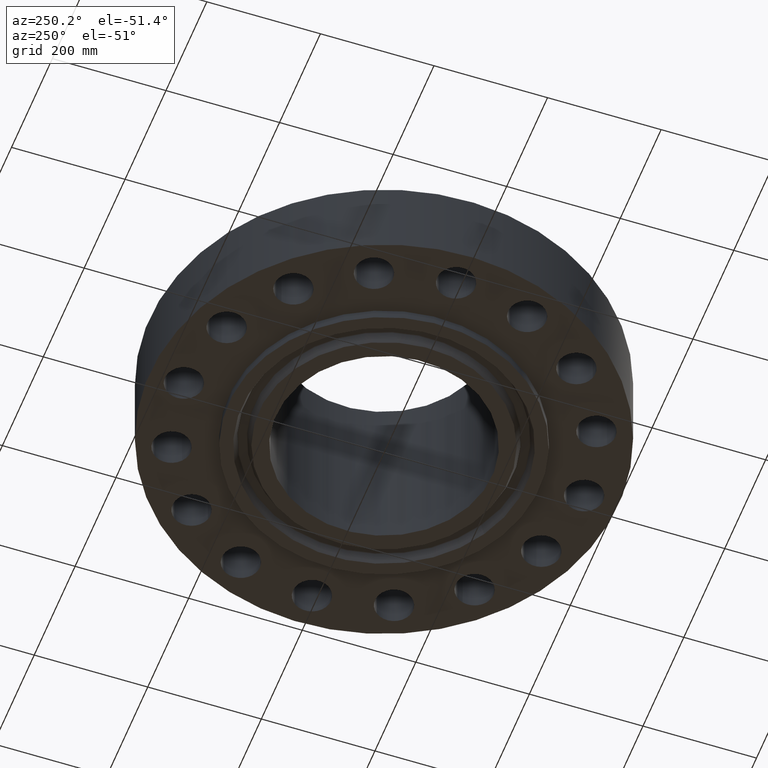
[diagram: clean part render]
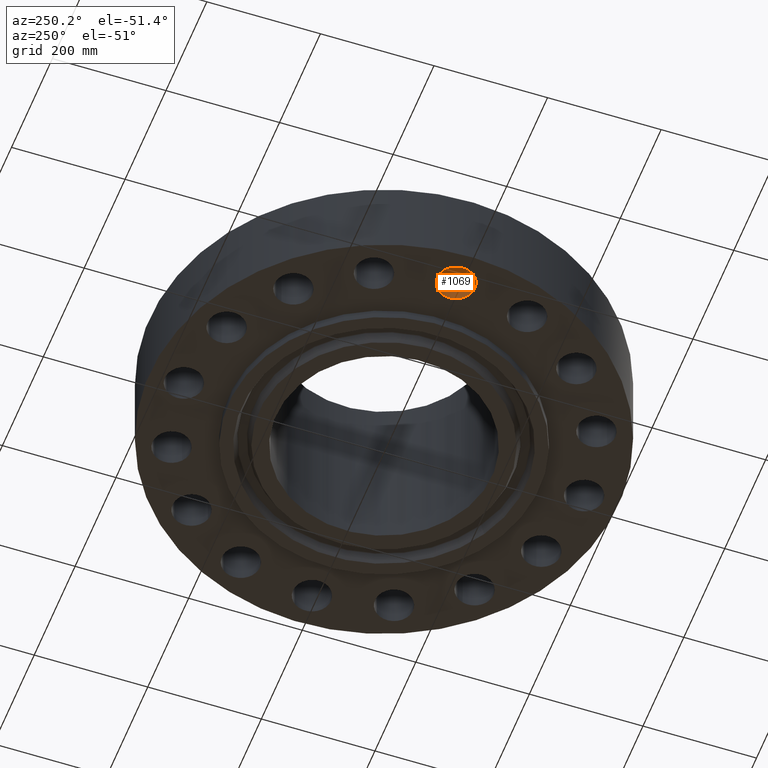
[diagram: same view with one face highlighted and labeled with its STEP entity id]
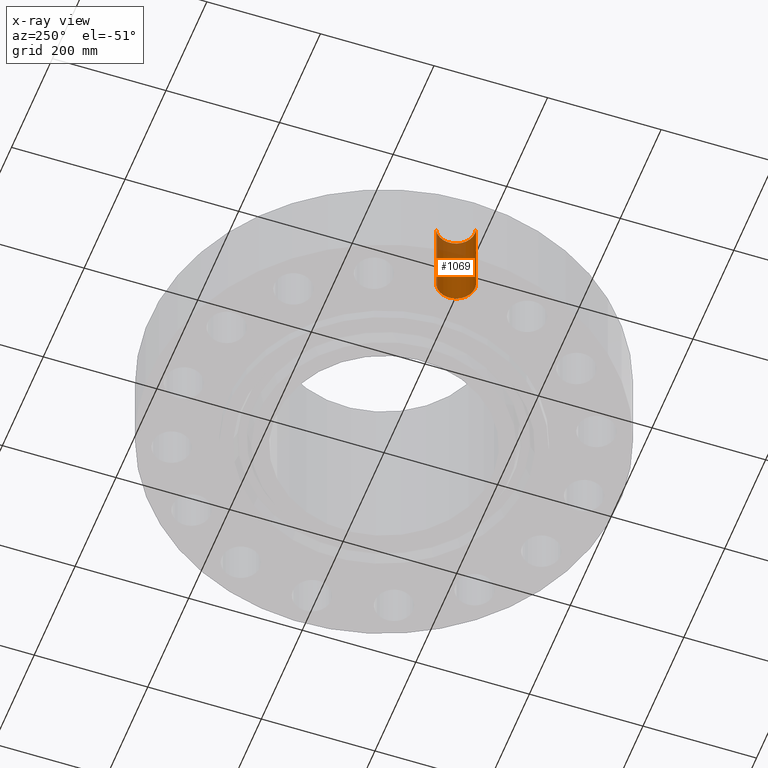
[diagram: x-ray of the same camera — body ghosted, the highlighted face saturated]
A machine part, auxiliary view. The second image highlights one B-rep face of the part: STEP entity #1069.
The next image is the same camera in x-ray: the body ghosted, the highlighted face saturated — about 17% of this face is hidden behind the body in this view.
In plain terms, the highlighted cylindrical surface (edge-blend (fillet) strip) has radius 33.401 mm, axis along (0, 0, -1).
Its self-contained STEP definition (entity closure, byte-faithful):
#707=AXIS2_PLACEMENT_3D('Circle Axis2P3D',#705,#706,$) ;
#1030=AXIS2_PLACEMENT_3D('Cylinder Axis2P3D',#1027,#1028,#1029) ;
#1060=AXIS2_PLACEMENT_3D('Circle Axis2P3D',#1058,#1059,$) ;
#700=CARTESIAN_POINT('Vertex',(-14.5054445833,-1.15402106889,0.)) ;
#702=CARTESIAN_POINT('Vertex',(-13.2445554168,1.15402106889,0.)) ;
#705=CARTESIAN_POINT('Axis2P3D Location',(-13.8750000001,-2.23792987641E-015,0.)) ;
#1027=CARTESIAN_POINT('Axis2P3D Location',(-13.8750000001,-2.54879615074E-015,5.74606299215)) ;
#1032=CARTESIAN_POINT('Line Origine',(-14.5054445833,-1.15402106889,2.87500000001)) ;
#1036=CARTESIAN_POINT('Vertex',(-14.5054445833,-1.15402106889,5.75000000002)) ;
#1039=CARTESIAN_POINT('Line Origine',(-13.2445554168,1.15402106889,2.87500000001)) ;
#1043=CARTESIAN_POINT('Vertex',(-13.2445554168,1.15402106889,5.75000000002)) ;
#1058=CARTESIAN_POINT('Axis2P3D Location',(-13.8750000001,-2.54879615074E-015,5.75000000002)) ;
#706=DIRECTION('Axis2P3D Direction',(0.,0.,-0.0393700787402)) ;
#1028=DIRECTION('Axis2P3D Direction',(0.,0.,-0.0393700787402)) ;
#1029=DIRECTION('Axis2P3D XDirection',(0.0188750212049,0.0345504945626,0.)) ;
#1033=DIRECTION('Vector Direction',(0.,0.,-0.0393700787402)) ;
#1040=DIRECTION('Vector Direction',(0.,0.,-0.0393700787402)) ;
#1059=DIRECTION('Axis2P3D Direction',(0.,0.,-0.0393700787402)) ;
#1034=VECTOR('Line Direction',#1033,0.0393700787402) ;
#1041=VECTOR('Line Direction',#1040,0.0393700787402) ;
#1064=ORIENTED_EDGE('',*,*,#1045,.F.) ;
#1065=ORIENTED_EDGE('',*,*,#709,.T.) ;
#1066=ORIENTED_EDGE('',*,*,#1038,.T.) ;
#1067=ORIENTED_EDGE('',*,*,#1062,.F.) ;
#1069=ADVANCED_FACE('PartBody',(#1068),#1031,.F.) ;
#708=CIRCLE('generated circle',#707,1.31500000001) ;
#1061=CIRCLE('generated circle',#1060,1.31500000001) ;
#1031=CYLINDRICAL_SURFACE('generated cylinder',#1030,1.31500000001) ;
#709=EDGE_CURVE('',#703,#701,#708,.T.) ;
#1038=EDGE_CURVE('',#701,#1037,#1035,.F.) ;
#1045=EDGE_CURVE('',#703,#1044,#1042,.F.) ;
#1062=EDGE_CURVE('',#1044,#1037,#1061,.T.) ;
#1063=EDGE_LOOP('',(#1064,#1065,#1066,#1067)) ;
#1068=FACE_OUTER_BOUND('',#1063,.T.) ;
#1035=LINE('Line',#1032,#1034) ;
#1042=LINE('Line',#1039,#1041) ;
#701=VERTEX_POINT('',#700) ;
#703=VERTEX_POINT('',#702) ;
#1037=VERTEX_POINT('',#1036) ;
#1044=VERTEX_POINT('',#1043) ;